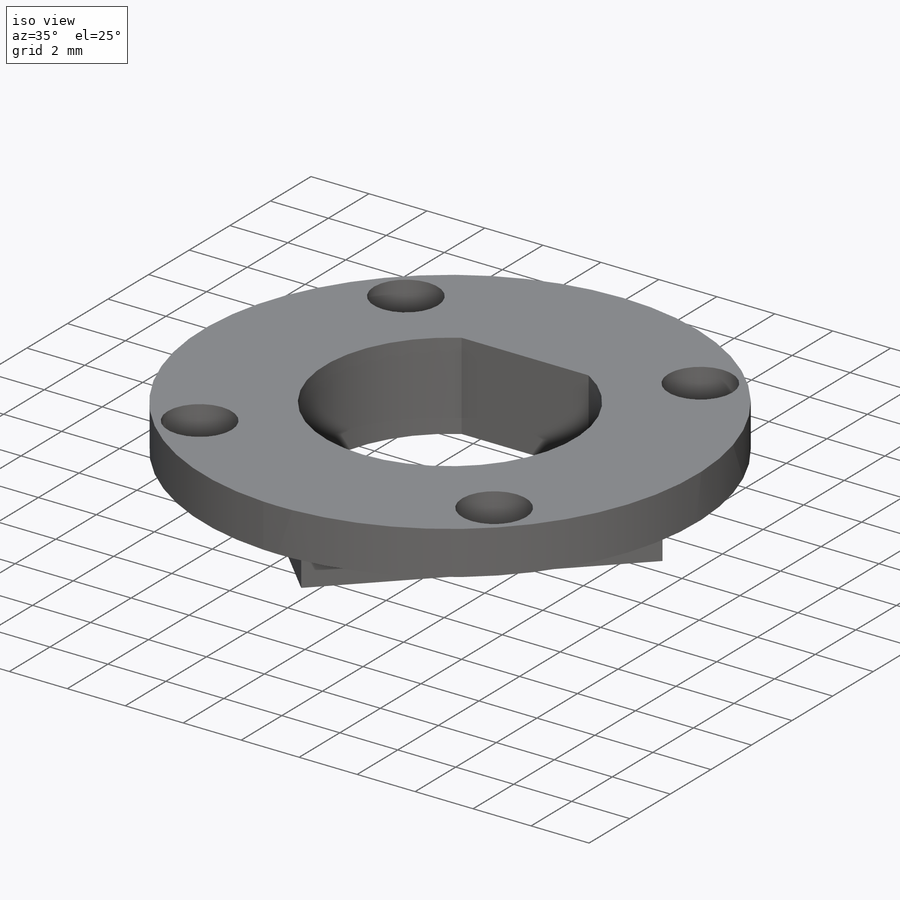
[diagram: iso view]
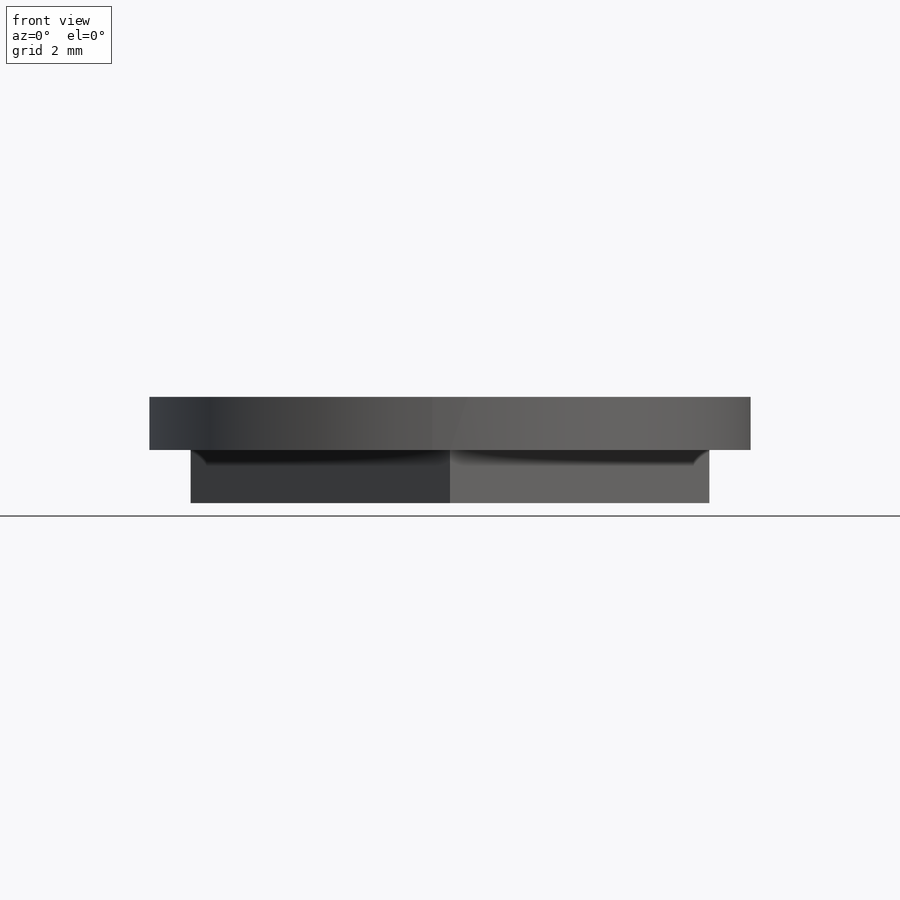
[diagram: front view]
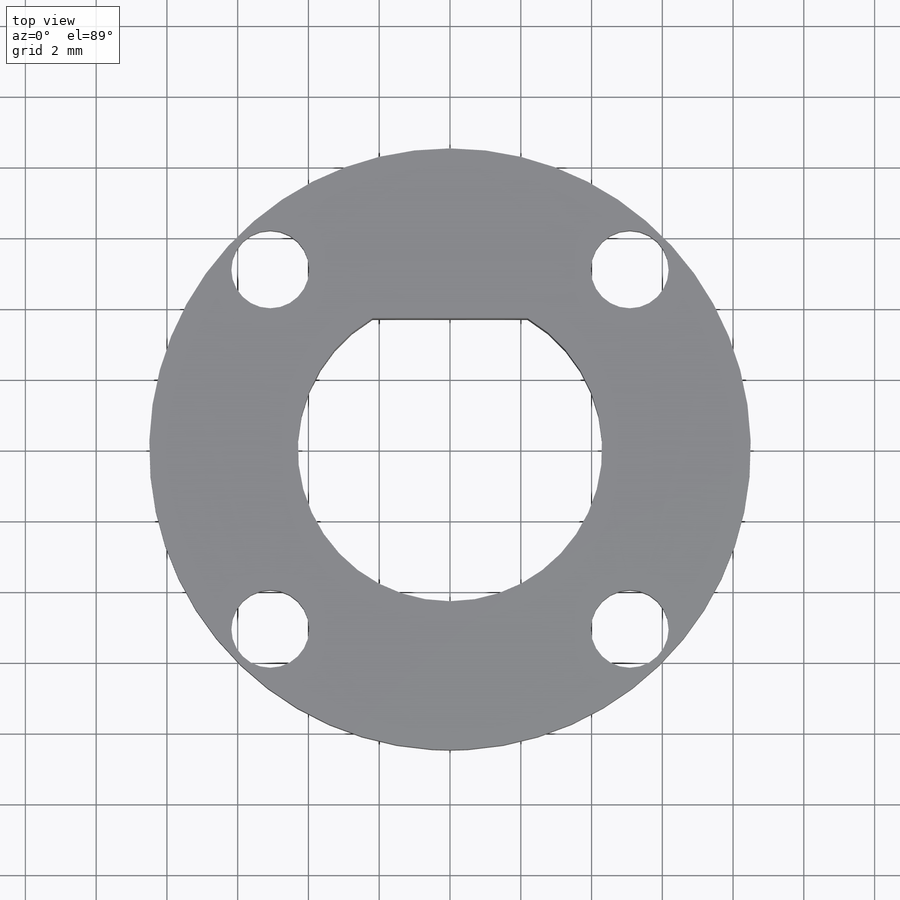
[diagram: top view]
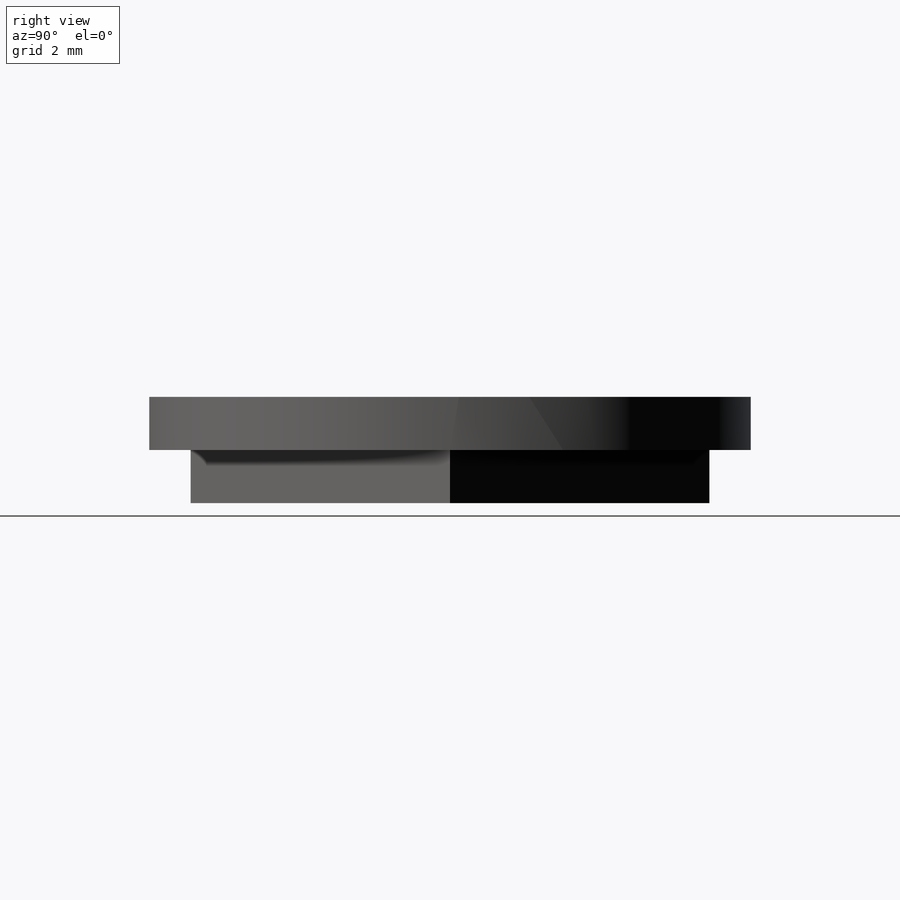
[diagram: right view]
SOLIDWORKS PART (.sldprt)
format: sldprt  version: not decoded by parser v0  size: 207,872 bytes
history: native  units: mm
features: sketch x4, cut_extrude x3, material x1, extrude x1, pattern_circular x1 (+12 scaffold rows collapsed)
feature tree (22):
  scaffold x12  (default folders/planes/origin — collapsed)
  material  "재질 <지정안함>"
  sketch  "스케치1"  dims[D1=~24.214881mm]
  extrude  "보스-돌출1"  Depth=3mm
  sketch  "스케치2"  dims[c1.D1=2.7mm c1.D2=7.0mm c2.D1=~7.282246mm c2.D2=4.3mm c2.D3=3.7mm]
  cut_extrude  "컷-돌출1"  Depth=3mm
  sketch  "스케치3"  dims[D13=~0.554689mm D1=2.54mm D2=2.54mm D3=2.54mm D4=2.54mm D5=2.54mm D6=2.54mm D7=2.54mm D8=2.54mm D9=2.54mm D10=2.54mm D11=2.54mm D12=2.54mm]
  cut_extrude  "컷-돌출2"  Depth=3mm
  sketch  "스케치4"  dims[c1.D1=45.0deg c1.D2=45.0deg c1.D3=45.0deg c2.D2=2.0mm c2.D3=2.0mm c2.D4=2.0mm c2.D5=2.0mm c2.D6=45.0deg c2.D7=45.0deg]
  cut_extrude  "컷-돌출3"  Depth=1.5mm
  pattern_circular  "원형 패턴1"  Count=4 Angle=90deg
decode coverage: 9 of 9 modeling features carry decoded parameters
note: ~ marks probable driven/reference dimensions
note: suppression state not decoded; provenance and decode notes live in map.json
